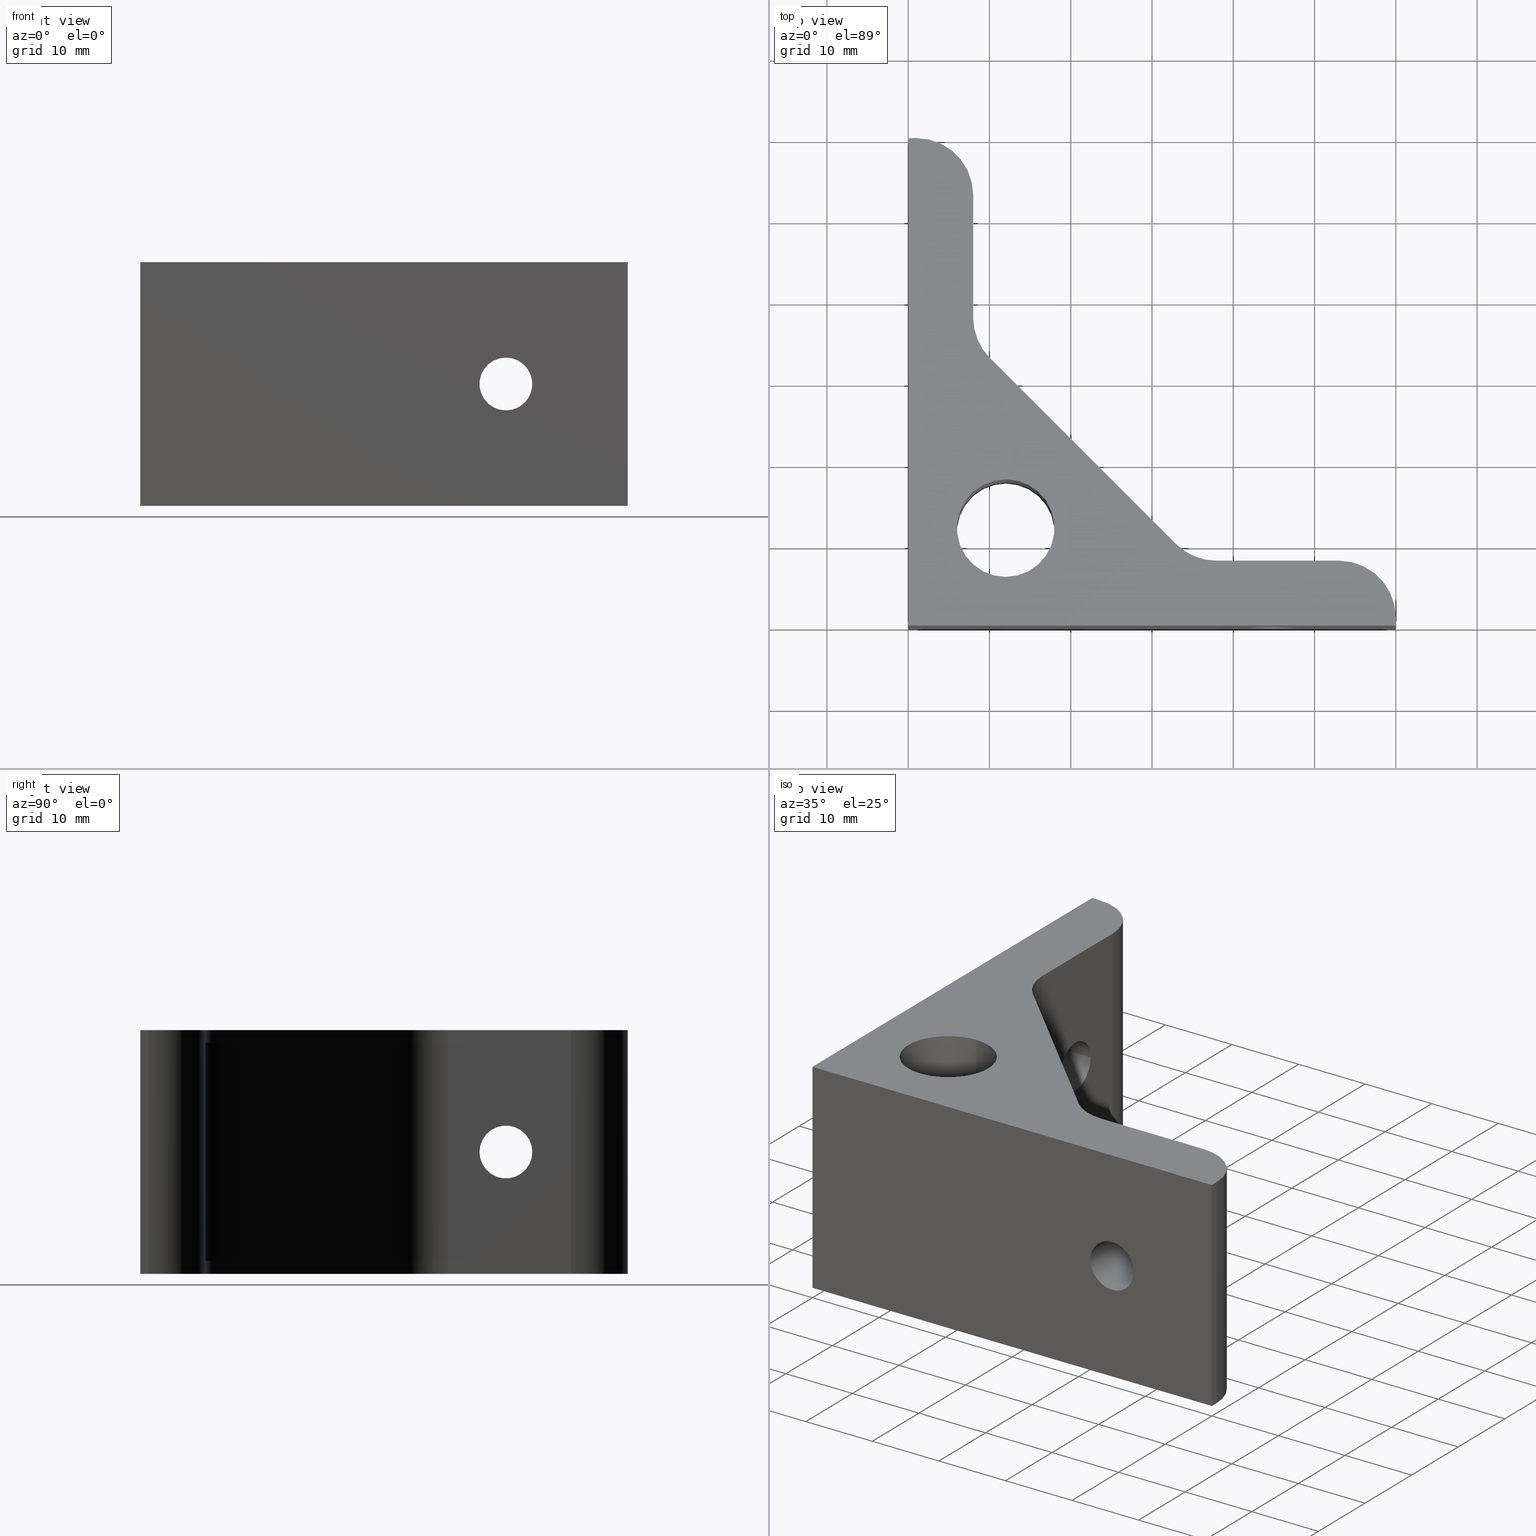
[diagram: canonical four-view strip — front | top / right | iso, engineering-drawing reading convention]
A machine part, canonical four-view strip (front | top / right | iso — engineering-drawing reading convention). The complete STEP part file that produces these views, byte-faithful:
ISO-10303-21;
HEADER;
FILE_DESCRIPTION (( 'STEP AP203' ),
    '1' );
FILE_NAME ('A30-10.STEP',
    '2018-04-03T10:58:11',
    ( 'User2' ),
    ( '' ),
    'SwSTEP 2.0',
    'SolidWorks 2007',
    '' );
FILE_SCHEMA (( 'CONFIG_CONTROL_DESIGN' ));
ENDSEC;

DATA;
#1 = AXIS2_PLACEMENT_3D ( 'NONE', #371, #367, #362 ) ;
#2 = AXIS2_PLACEMENT_3D ( 'NONE', #9, #11, #12 ) ;
#3 = AXIS2_PLACEMENT_3D ( 'NONE', #370, #369, #368 ) ;
#4 = DIRECTION ( 'NONE',  ( 0.0000000000000000000, 1.000000000000000000, 0.0000000000000000000 ) ) ;
#5 = CARTESIAN_POINT ( 'NONE',  ( 0.0000000000000000000, 30.00000000000000000, 0.0000000000000000000 ) ) ;
#6 = DIRECTION ( 'NONE',  ( -0.0000000000000000000, -0.0000000000000000000, -1.000000000000000000 ) ) ;
#7 = CARTESIAN_POINT ( 'NONE',  ( 0.0000000000000000000, 0.0000000000000000000, 15.00000000000000000 ) ) ;
#8 = DIRECTION ( 'NONE',  ( 0.0000000000000000000, 1.000000000000000000, 0.0000000000000000000 ) ) ;
#9 = CARTESIAN_POINT ( 'NONE',  ( -7.000000000000000000, 0.9999999999999926700, 3.469446951953614200E-015 ) ) ;
#10 = DIRECTION ( 'NONE',  ( 0.0000000000000000000, 0.0000000000000000000, 1.000000000000000000 ) ) ;
#11 = DIRECTION ( 'NONE',  ( -0.0000000000000000000, 2.478176394252582100E-016, 1.000000000000000000 ) ) ;
#12 = DIRECTION ( 'NONE',  ( -1.734723475976806900E-015, 1.000000000000000000, -2.478176394252581600E-016 ) ) ;
#13 = CARTESIAN_POINT ( 'NONE',  ( -7.000000000000000000, 8.000000000000000000, 15.00000000000000000 ) ) ;
#14 = ORIENTED_EDGE ( 'NONE', *, *, #290, .T. ) ;
#15 = ORIENTED_EDGE ( 'NONE', *, *, #383, .T. ) ;
#16 = ORIENTED_EDGE ( 'NONE', *, *, #382, .F. ) ;
#17 = ORIENTED_EDGE ( 'NONE', *, *, #381, .T. ) ;
#18 = ORIENTED_EDGE ( 'NONE', *, *, #386, .T. ) ;
#19 = ORIENTED_EDGE ( 'NONE', *, *, #396, .T. ) ;
#20 = ORIENTED_EDGE ( 'NONE', *, *, #292, .T. ) ;
#21 = ORIENTED_EDGE ( 'NONE', *, *, #395, .T. ) ;
#22 = ORIENTED_EDGE ( 'NONE', *, *, #294, .F. ) ;
#23 = ORIENTED_EDGE ( 'NONE', *, *, #394, .F. ) ;
#24 = ORIENTED_EDGE ( 'NONE', *, *, #386, .F. ) ;
#25 = ORIENTED_EDGE ( 'NONE', *, *, #389, .F. ) ;
#26 = ORIENTED_EDGE ( 'NONE', *, *, #392, .F. ) ;
#27 = ORIENTED_EDGE ( 'NONE', *, *, #293, .F. ) ;
#28 = ORIENTED_EDGE ( 'NONE', *, *, #396, .F. ) ;
#29 = ORIENTED_EDGE ( 'NONE', *, *, #393, .F. ) ;
#30 = ORIENTED_EDGE ( 'NONE', *, *, #378, .F. ) ;
#31 = ORIENTED_EDGE ( 'NONE', *, *, #388, .F. ) ;
#32 = ORIENTED_EDGE ( 'NONE', *, *, #383, .F. ) ;
#33 = ORIENTED_EDGE ( 'NONE', *, *, #395, .F. ) ;
#34 = ORIENTED_EDGE ( 'NONE', *, *, #290, .F. ) ;
#35 = CLOSED_SHELL ( 'NONE', ( #178, #179, #180, #181, #182, #183, #184, #185, #186, #187, #188, #189, #190, #191, #192, #310, #311, #313, #314 ) ) ;
#36 = ORIENTED_EDGE ( 'NONE', *, *, #394, .T. ) ;
#37 = ORIENTED_EDGE ( 'NONE', *, *, #391, .F. ) ;
#38 = ORIENTED_EDGE ( 'NONE', *, *, #409, .F. ) ;
#39 = ORIENTED_EDGE ( 'NONE', *, *, #410, .F. ) ;
#40 = ORIENTED_EDGE ( 'NONE', *, *, #413, .F. ) ;
#41 = ORIENTED_EDGE ( 'NONE', *, *, #374, .F. ) ;
#42 = ORIENTED_EDGE ( 'NONE', *, *, #298, .T. ) ;
#43 = ORIENTED_EDGE ( 'NONE', *, *, #380, .F. ) ;
#44 = ORIENTED_EDGE ( 'NONE', *, *, #393, .T. ) ;
#45 = ORIENTED_EDGE ( 'NONE', *, *, #384, .F. ) ;
#46 = ORIENTED_EDGE ( 'NONE', *, *, #385, .F. ) ;
#47 = ORIENTED_EDGE ( 'NONE', *, *, #289, .F. ) ;
#48 = ORIENTED_EDGE ( 'NONE', *, *, #377, .F. ) ;
#49 = ORIENTED_EDGE ( 'NONE', *, *, #392, .T. ) ;
#50 = ORIENTED_EDGE ( 'NONE', *, *, #390, .T. ) ;
#51 = ORIENTED_EDGE ( 'NONE', *, *, #408, .T. ) ;
#52 = ORIENTED_EDGE ( 'NONE', *, *, #391, .T. ) ;
#53 = ORIENTED_EDGE ( 'NONE', *, *, #404, .T. ) ;
#54 = ORIENTED_EDGE ( 'NONE', *, *, #375, .T. ) ;
#55 = ORIENTED_EDGE ( 'NONE', *, *, #373, .T. ) ;
#56 = ORIENTED_EDGE ( 'NONE', *, *, #412, .T. ) ;
#57 = ORIENTED_EDGE ( 'NONE', *, *, #407, .T. ) ;
#58 = ORIENTED_EDGE ( 'NONE', *, *, #390, .F. ) ;
#59 = ORIENTED_EDGE ( 'NONE', *, *, #389, .T. ) ;
#60 = ORIENTED_EDGE ( 'NONE', *, *, #387, .T. ) ;
#61 = ORIENTED_EDGE ( 'NONE', *, *, #382, .T. ) ;
#62 = ORIENTED_EDGE ( 'NONE', *, *, #388, .T. ) ;
#63 = ORIENTED_EDGE ( 'NONE', *, *, #379, .T. ) ;
#64 = ORIENTED_EDGE ( 'NONE', *, *, #295, .T. ) ;
#65 = ORIENTED_EDGE ( 'NONE', *, *, #376, .T. ) ;
#66 = ORIENTED_EDGE ( 'NONE', *, *, #387, .F. ) ;
#67 = ORIENTED_EDGE ( 'NONE', *, *, #285, .T. ) ;
#68 = ORIENTED_EDGE ( 'NONE', *, *, #376, .F. ) ;
#69 = ORIENTED_EDGE ( 'NONE', *, *, #286, .F. ) ;
#70 = ORIENTED_EDGE ( 'NONE', *, *, #375, .F. ) ;
#71 = ORIENTED_EDGE ( 'NONE', *, *, #374, .T. ) ;
#72 = ORIENTED_EDGE ( 'NONE', *, *, #377, .T. ) ;
#73 = ORIENTED_EDGE ( 'NONE', *, *, #414, .F. ) ;
#74 = ORIENTED_EDGE ( 'NONE', *, *, #297, .F. ) ;
#75 = AXIS2_PLACEMENT_3D ( 'NONE', #119, #120, #121 ) ;
#76 = AXIS2_PLACEMENT_3D ( 'NONE', #124, #125, #126 ) ;
#77 = AXIS2_PLACEMENT_3D ( 'NONE', #135, #136, #137 ) ;
#78 = AXIS2_PLACEMENT_3D ( 'NONE', #140, #141, #142 ) ;
#79 = AXIS2_PLACEMENT_3D ( 'NONE', #499, #500, #501 ) ;
#80 = CC_DESIGN_PERSON_AND_ORGANIZATION_ASSIGNMENT ( #234, #505, ( #193 ) ) ;
#81 = PRODUCT_DEFINITION ( 'UNKNOWN', '', #86, #316 ) ;
#82 = APPROVAL ( #508, 'UNSPECIFIED' ) ;
#83 = CC_DESIGN_APPROVAL ( #82, ( #81 ) ) ;
#84 = CC_DESIGN_PERSON_AND_ORGANIZATION_ASSIGNMENT ( #242, #510, ( #81 ) ) ;
#85 = CC_DESIGN_DATE_AND_TIME_ASSIGNMENT ( #246, #511, ( #81 ) ) ;
#86 = PRODUCT_DEFINITION_FORMATION_WITH_SPECIFIED_SOURCE ( 'ANY', '', #193, .NOT_KNOWN. ) ;
#87 = APPROVAL ( #512, 'UNSPECIFIED' ) ;
#88 = CC_DESIGN_APPROVAL ( #87, ( #86 ) ) ;
#89 = CC_DESIGN_PERSON_AND_ORGANIZATION_ASSIGNMENT ( #254, #514, ( #86 ) ) ;
#90 = CC_DESIGN_PERSON_AND_ORGANIZATION_ASSIGNMENT ( #255, #515, ( #86 ) ) ;
#91 = CC_DESIGN_PERSON_AND_ORGANIZATION_ASSIGNMENT ( #257, #517, ( #256 ) ) ;
#92 = CC_DESIGN_DATE_AND_TIME_ASSIGNMENT ( #261, #518, ( #256 ) ) ;
#93 = APPROVAL ( #519, 'UNSPECIFIED' ) ;
#94 = CC_DESIGN_APPROVAL ( #93, ( #256 ) ) ;
#95 = CC_DESIGN_SECURITY_CLASSIFICATION ( #256, ( #86 ) ) ;
#96 = PRODUCT_RELATED_PRODUCT_CATEGORY ( 'detail', '', ( #193 ) ) ;
#97 = CARTESIAN_POINT ( 'NONE',  ( -14.55025253150000200, 8.000000000000000000, 30.00000000000000000 ) ) ;
#98 = DIRECTION ( 'NONE',  ( -1.000000000000000000, -0.0000000000000000000, -0.0000000000000000000 ) ) ;
#99 = CARTESIAN_POINT ( 'NONE',  ( -22.10050506300000400, 15.00000000000000000, 30.00000000000000000 ) ) ;
#100 = DIRECTION ( 'NONE',  ( 0.0000000000000000000, -0.0000000000000000000, 1.000000000000000000 ) ) ;
#101 = DIRECTION ( 'NONE',  ( 1.000000000000000000, 0.0000000000000000000, 0.0000000000000000000 ) ) ;
#102 = CARTESIAN_POINT ( 'NONE',  ( -22.10050506300000400, 15.00000000000000000, 0.0000000000000000000 ) ) ;
#103 = DIRECTION ( 'NONE',  ( -0.0000000000000000000, 0.0000000000000000000, -1.000000000000000000 ) ) ;
#104 = DIRECTION ( 'NONE',  ( 1.000000000000000000, 0.0000000000000000000, 0.0000000000000000000 ) ) ;
#105 = CARTESIAN_POINT ( 'NONE',  ( -22.10050506300000400, 8.000000000000000000, 15.00000000000000000 ) ) ;
#106 = DIRECTION ( 'NONE',  ( -0.0000000000000000000, -0.0000000000000000000, -1.000000000000000000 ) ) ;
#107 = CARTESIAN_POINT ( 'NONE',  ( -30.00000000000000000, 0.0000000000000000000, 0.0000000000000000000 ) ) ;
#108 = DIRECTION ( 'NONE',  ( -1.000000000000000000, 0.0000000000000000000, 0.0000000000000000000 ) ) ;
#109 = CARTESIAN_POINT ( 'NONE',  ( -14.55025253150000200, 8.000000000000000000, 0.0000000000000000000 ) ) ;
#110 = DIRECTION ( 'NONE',  ( 1.000000000000000000, 0.0000000000000000000, 0.0000000000000000000 ) ) ;
#111 = CARTESIAN_POINT ( 'NONE',  ( -15.00000000000000000, 0.0000000000000000000, 15.00000000000000000 ) ) ;
#112 = DIRECTION ( 'NONE',  ( 0.0000000000000000000, -1.000000000000000000, -0.0000000000000000000 ) ) ;
#113 = DIRECTION ( 'NONE',  ( 0.0000000000000000000, 0.0000000000000000000, 1.000000000000000000 ) ) ;
#114 = CARTESIAN_POINT ( 'NONE',  ( -15.00000000000000000, 8.000000000000000000, 15.00000000000000000 ) ) ;
#115 = DIRECTION ( 'NONE',  ( -0.0000000000000000000, 1.000000000000000000, 0.0000000000000000000 ) ) ;
#116 = DIRECTION ( 'NONE',  ( 0.0000000000000000000, 0.0000000000000000000, 1.000000000000000000 ) ) ;
#117 = CARTESIAN_POINT ( 'NONE',  ( -60.00000000000000000, 60.00000000000000000, 15.00000000000000000 ) ) ;
#118 = DIRECTION ( 'NONE',  ( -0.0000000000000000000, -0.0000000000000000000, 1.000000000000000000 ) ) ;
#119 = CARTESIAN_POINT ( 'NONE',  ( -60.00000000000000000, 45.00000000000000000, 15.00000000000000000 ) ) ;
#120 = DIRECTION ( 'NONE',  ( -1.000000000000000000, 1.067522139062651900E-015, -0.0000000000000000000 ) ) ;
#121 = DIRECTION ( 'NONE',  ( 2.135044278125299400E-015, 1.000000000000000000, 0.0000000000000000000 ) ) ;
#122 = CARTESIAN_POINT ( 'NONE',  ( -59.50000000000000000, 60.00000000000000000, 30.00000000000000000 ) ) ;
#123 = DIRECTION ( 'NONE',  ( -1.000000000000000000, -0.0000000000000000000, -0.0000000000000000000 ) ) ;
#124 = CARTESIAN_POINT ( 'NONE',  ( -52.00000000000000700, 44.99999999999999300, 15.00000000000000000 ) ) ;
#125 = DIRECTION ( 'NONE',  ( 1.000000000000000000, -1.067522139062651900E-015, 0.0000000000000000000 ) ) ;
#126 = DIRECTION ( 'NONE',  ( 2.135044278125303700E-015, 1.000000000000000000, 0.0000000000000000000 ) ) ;
#127 = CARTESIAN_POINT ( 'NONE',  ( -49.94974746824267000, 32.94974746863101700, 14.99999999999999800 ) ) ;
#128 = DIRECTION ( 'NONE',  ( -0.0000000000000000000, -0.0000000000000000000, -1.000000000000000000 ) ) ;
#129 = CARTESIAN_POINT ( 'NONE',  ( -27.05025251999999700, 10.05025254000000200, 30.00000000000000000 ) ) ;
#130 = DIRECTION ( 'NONE',  ( -0.7071067811865474600, 0.7071067811865475700, 0.0000000000000000000 ) ) ;
#131 = CARTESIAN_POINT ( 'NONE',  ( -27.05025253124269100, 10.05025253163101500, 14.99999999999999800 ) ) ;
#132 = DIRECTION ( 'NONE',  ( 0.0000000000000000000, 0.0000000000000000000, 1.000000000000000000 ) ) ;
#133 = CARTESIAN_POINT ( 'NONE',  ( -49.94974746799999800, 32.94974746799999100, 0.0000000000000000000 ) ) ;
#134 = DIRECTION ( 'NONE',  ( -0.7071067811865475700, 0.7071067811865474600, -0.0000000000000000000 ) ) ;
#135 = CARTESIAN_POINT ( 'NONE',  ( -45.00000000000000000, 37.89949493700000700, 0.0000000000000000000 ) ) ;
#136 = DIRECTION ( 'NONE',  ( -0.0000000000000000000, 0.0000000000000000000, -1.000000000000000000 ) ) ;
#137 = DIRECTION ( 'NONE',  ( 1.000000000000000000, 0.0000000000000000000, 0.0000000000000000000 ) ) ;
#138 = CARTESIAN_POINT ( 'NONE',  ( -52.00000000000000700, 37.89949493700000700, 15.00000000000000000 ) ) ;
#139 = DIRECTION ( 'NONE',  ( 0.0000000000000000000, 0.0000000000000000000, 1.000000000000000000 ) ) ;
#140 = CARTESIAN_POINT ( 'NONE',  ( -45.00000000000000000, 37.89949493700000700, 30.00000000000000000 ) ) ;
#141 = DIRECTION ( 'NONE',  ( -0.0000000000000000000, 0.0000000000000000000, -1.000000000000000000 ) ) ;
#142 = DIRECTION ( 'NONE',  ( 1.000000000000000000, 0.0000000000000000000, 0.0000000000000000000 ) ) ;
#143 = CARTESIAN_POINT ( 'NONE',  ( -52.00000001999999500, 30.00000000000000000, 0.0000000000000000000 ) ) ;
#144 = DIRECTION ( 'NONE',  ( 0.0000000000000000000, 1.000000000000000000, 0.0000000000000000000 ) ) ;
#145 = CARTESIAN_POINT ( 'NONE',  ( -52.00000000000000700, 52.99999999712855500, 15.00000000000000000 ) ) ;
#146 = DIRECTION ( 'NONE',  ( -0.0000000000000000000, -0.0000000000000000000, 1.000000000000000000 ) ) ;
#147 = CARTESIAN_POINT ( 'NONE',  ( -27.05025253137134600, 10.05025253156551000, 0.0000000000000000000 ) ) ;
#148 = CARTESIAN_POINT ( 'NONE',  ( -58.99999999928213900, 60.00000000000000000, -8.673617379884039400E-016 ) ) ;
#149 = CARTESIAN_POINT ( 'NONE',  ( -52.00000001000000100, 37.89949493700000700, 30.00000000000000000 ) ) ;
#150 = CARTESIAN_POINT ( 'NONE',  ( -7.000000000000000000, 8.000000000000000000, 30.00000000000000000 ) ) ;
#151 = CARTESIAN_POINT ( 'NONE',  ( -48.00000000000000000, 17.99999999999998900, -1.734723475976807900E-015 ) ) ;
#152 = CARTESIAN_POINT ( 'NONE',  ( -15.00000000000000000, 8.000000000000000000, 11.75000000000000000 ) ) ;
#153 = CARTESIAN_POINT ( 'NONE',  ( -52.00000001000000100, 37.89949493700000700, 0.0000000000000000000 ) ) ;
#154 = CARTESIAN_POINT ( 'NONE',  ( -48.00000000000000000, 5.999999999999992900, 1.734723475976807500E-015 ) ) ;
#155 = CARTESIAN_POINT ( 'NONE',  ( -52.00000000000000000, 48.24999999999998600, 15.00000000000000000 ) ) ;
#156 = CARTESIAN_POINT ( 'NONE',  ( -22.10050506300000400, 8.000000000000000000, 30.00000000000000000 ) ) ;
#157 = CARTESIAN_POINT ( 'NONE',  ( -59.99999999999999300, 48.25000000000000000, 15.00000000000000000 ) ) ;
#158 = CARTESIAN_POINT ( 'NONE',  ( -52.00000001000000100, 52.99999999856427700, 30.00000000000000000 ) ) ;
#159 = CARTESIAN_POINT ( 'NONE',  ( -15.00000000000000000, 0.0000000000000000000, 11.75000000000000000 ) ) ;
#160 = CARTESIAN_POINT ( 'NONE',  ( -52.00000000000000700, 41.74999999999999300, 15.00000000000000000 ) ) ;
#161 = CARTESIAN_POINT ( 'NONE',  ( 0.0000000000000000000, 0.9999999985642721300, 1.734723475976807100E-015 ) ) ;
#162 = CARTESIAN_POINT ( 'NONE',  ( -22.10050506300000400, 8.000000000000000000, 0.0000000000000000000 ) ) ;
#163 = CARTESIAN_POINT ( 'NONE',  ( -49.94974746337133100, 32.94974747356550900, 30.00000000000000000 ) ) ;
#164 = CARTESIAN_POINT ( 'NONE',  ( -15.00000000000000000, 0.0000000000000000000, 18.25000000000000000 ) ) ;
#165 = CARTESIAN_POINT ( 'NONE',  ( 0.0000000000000000000, 0.9999999985642759000, 30.00000000000000000 ) ) ;
#166 = CARTESIAN_POINT ( 'NONE',  ( 0.0000000000000000000, 0.0000000000000000000, 30.00000000000000000 ) ) ;
#167 = CARTESIAN_POINT ( 'NONE',  ( -27.05025252637134500, 10.05025253656551100, 30.00000000000000000 ) ) ;
#168 = CARTESIAN_POINT ( 'NONE',  ( -49.94974746837132800, 32.94974746856550500, 0.0000000000000000000 ) ) ;
#169 = CARTESIAN_POINT ( 'NONE',  ( 0.0000000000000000000, 0.0000000000000000000, 0.0000000000000000000 ) ) ;
#170 = CARTESIAN_POINT ( 'NONE',  ( -60.00000000000000700, 41.74999999999999300, 15.00000000000000000 ) ) ;
#171 = CARTESIAN_POINT ( 'NONE',  ( -48.00000000000000000, 6.000000000000001800, 30.00000000000000400 ) ) ;
#172 = CARTESIAN_POINT ( 'NONE',  ( -60.00000000000000000, 0.0000000000000000000, 30.00000000000000000 ) ) ;
#173 = CARTESIAN_POINT ( 'NONE',  ( -52.00000001000000100, 52.99999999856427000, 0.0000000000000000000 ) ) ;
#174 = CARTESIAN_POINT ( 'NONE',  ( -15.00000000000000000, 8.000000000000000000, 18.25000000000000000 ) ) ;
#175 = CARTESIAN_POINT ( 'NONE',  ( -7.000000000000000000, 8.000000000000000000, 8.673617379884035500E-016 ) ) ;
#176 = CARTESIAN_POINT ( 'NONE',  ( -60.00000000000000000, 60.00000000000000000, 30.00000000000000000 ) ) ;
#177 = CARTESIAN_POINT ( 'NONE',  ( -58.99999999928213900, 60.00000000000000000, 30.00000000000000000 ) ) ;
#178 = ADVANCED_FACE ( 'NONE', ( #611 ), #612, .F. ) ;
#179 = ADVANCED_FACE ( 'NONE', ( #613 ), #614, .F. ) ;
#180 = ADVANCED_FACE ( 'NONE', ( #615 ), #616, .F. ) ;
#181 = ADVANCED_FACE ( 'NONE', ( #617 ), #460, .F. ) ;
#182 = ADVANCED_FACE ( 'NONE', ( #618 ), #619, .F. ) ;
#183 = ADVANCED_FACE ( 'NONE', ( #620 ), #423, .F. ) ;
#184 = ADVANCED_FACE ( 'NONE', ( #623 ), #624, .F. ) ;
#185 = ADVANCED_FACE ( 'NONE', ( #626, #628 ), #462, .F. ) ;
#186 = ADVANCED_FACE ( 'NONE', ( #591 ), #629, .T. ) ;
#187 = ADVANCED_FACE ( 'NONE', ( #590 ), #627, .F. ) ;
#188 = ADVANCED_FACE ( 'NONE', ( #625, #622 ), #540, .F. ) ;
#189 = ADVANCED_FACE ( 'NONE', ( #621 ), #536, .F. ) ;
#190 = ADVANCED_FACE ( 'NONE', ( #630 ), #632, .T. ) ;
#191 = ADVANCED_FACE ( 'NONE', ( #631, #636 ), #529, .T. ) ;
#192 = ADVANCED_FACE ( 'NONE', ( #637 ), #638, .F. ) ;
#193 = PRODUCT ( 'A30-10', 'A30-10', '', ( #504 ) ) ;
#194 = PERSON ( 'UNSPECIFIED', 'UNSPECIFIED', 'UNSPECIFIED', ('UNSPECIFIED'), ('UNSPECIFIED'), ('UNSPECIFIED') ) ;
#195 = CIRCLE ( 'NONE', #550, 7.000000000000000000 ) ;
#196 = VECTOR ( 'NONE', #299, 1000.000000000000000 ) ;
#197 = LINE ( 'NONE', #97, #198 ) ;
#198 = VECTOR ( 'NONE', #98, 1000.000000000000000 ) ;
#199 = CIRCLE ( 'NONE', #549, 7.000000000000004400 ) ;
#200 = LINE ( 'NONE', #105, #202 ) ;
#201 = CIRCLE ( 'NONE', #548, 7.000000000000004400 ) ;
#202 = VECTOR ( 'NONE', #106, 1000.000000000000000 ) ;
#203 = LINE ( 'NONE', #107, #204 ) ;
#204 = VECTOR ( 'NONE', #108, 1000.000000000000000 ) ;
#205 = LINE ( 'NONE', #109, #206 ) ;
#206 = VECTOR ( 'NONE', #110, 1000.000000000000000 ) ;
#207 = CIRCLE ( 'NONE', #486, 3.249999999999999600 ) ;
#208 = LINE ( 'NONE', #117, #210 ) ;
#209 = CIRCLE ( 'NONE', #485, 3.249999999999999600 ) ;
#210 = VECTOR ( 'NONE', #118, 1000.000000000000000 ) ;
#211 = LINE ( 'NONE', #122, #213 ) ;
#212 = CIRCLE ( 'NONE', #75, 3.250000000000002700 ) ;
#213 = VECTOR ( 'NONE', #123, 1000.000000000000000 ) ;
#214 = LINE ( 'NONE', #127, #216 ) ;
#215 = CIRCLE ( 'NONE', #76, 3.249999999999996000 ) ;
#216 = VECTOR ( 'NONE', #128, 1000.000000000000000 ) ;
#217 = LINE ( 'NONE', #129, #218 ) ;
#218 = VECTOR ( 'NONE', #130, 1000.000000000000000 ) ;
#219 = LINE ( 'NONE', #131, #220 ) ;
#220 = VECTOR ( 'NONE', #132, 1000.000000000000000 ) ;
#221 = LINE ( 'NONE', #133, #222 ) ;
#222 = VECTOR ( 'NONE', #134, 1000.000000000000000 ) ;
#223 = LINE ( 'NONE', #138, #225 ) ;
#224 = CIRCLE ( 'NONE', #77, 6.999999999999999100 ) ;
#225 = VECTOR ( 'NONE', #139, 1000.000000000000000 ) ;
#226 = LINE ( 'NONE', #143, #228 ) ;
#227 = CIRCLE ( 'NONE', #78, 6.999999999999999100 ) ;
#228 = VECTOR ( 'NONE', #144, 1000.000000000000000 ) ;
#229 = LINE ( 'NONE', #145, #230 ) ;
#230 = VECTOR ( 'NONE', #146, 1000.000000000000000 ) ;
#231 =( GEOMETRIC_REPRESENTATION_CONTEXT ( 3 ) GLOBAL_UNCERTAINTY_ASSIGNED_CONTEXT ( ( #372 ) ) GLOBAL_UNIT_ASSIGNED_CONTEXT ( ( #496, #497, #498 ) ) REPRESENTATION_CONTEXT ( 'NONE', 'WORKASPACE' ) );
#232 = SHAPE_DEFINITION_REPRESENTATION ( #317, #315 ) ;
#233 = ORGANIZATION ( 'UNSPECIFIED', 'UNSPECIFIED', '' ) ;
#234 = PERSON_AND_ORGANIZATION ( #194, #233 ) ;
#235 = PERSON_AND_ORGANIZATION ( #194, #233 ) ;
#236 = APPROVAL_PERSON_ORGANIZATION ( #235, #82, #509 ) ;
#237 = COORDINATED_UNIVERSAL_TIME_OFFSET ( 3, 0, .BEHIND. ) ;
#238 = LOCAL_TIME ( 7, 58, 11.00000000000000000, #237 ) ;
#239 = CALENDAR_DATE ( 2018, 3, 4 ) ;
#240 = DATE_AND_TIME ( #239, #238 ) ;
#241 = APPROVAL_DATE_TIME ( #240, #82 ) ;
#242 = PERSON_AND_ORGANIZATION ( #194, #233 ) ;
#243 = COORDINATED_UNIVERSAL_TIME_OFFSET ( 3, 0, .BEHIND. ) ;
#244 = LOCAL_TIME ( 7, 58, 11.00000000000000000, #243 ) ;
#245 = CALENDAR_DATE ( 2018, 3, 4 ) ;
#246 = DATE_AND_TIME ( #245, #244 ) ;
#247 = PERSON_AND_ORGANIZATION ( #194, #233 ) ;
#248 = APPROVAL_PERSON_ORGANIZATION ( #247, #87, #513 ) ;
#249 = COORDINATED_UNIVERSAL_TIME_OFFSET ( 3, 0, .BEHIND. ) ;
#250 = LOCAL_TIME ( 7, 58, 11.00000000000000000, #249 ) ;
#251 = CALENDAR_DATE ( 2018, 3, 4 ) ;
#252 = DATE_AND_TIME ( #251, #250 ) ;
#253 = APPROVAL_DATE_TIME ( #252, #87 ) ;
#254 = PERSON_AND_ORGANIZATION ( #194, #233 ) ;
#255 = PERSON_AND_ORGANIZATION ( #194, #233 ) ;
#256 = SECURITY_CLASSIFICATION ( '', '', #516 ) ;
#257 = PERSON_AND_ORGANIZATION ( #194, #233 ) ;
#258 = COORDINATED_UNIVERSAL_TIME_OFFSET ( 3, 0, .BEHIND. ) ;
#259 = LOCAL_TIME ( 7, 58, 11.00000000000000000, #258 ) ;
#260 = CALENDAR_DATE ( 2018, 3, 4 ) ;
#261 = DATE_AND_TIME ( #260, #259 ) ;
#262 = PERSON_AND_ORGANIZATION ( #194, #233 ) ;
#263 = APPROVAL_PERSON_ORGANIZATION ( #262, #93, #520 ) ;
#264 = COORDINATED_UNIVERSAL_TIME_OFFSET ( 3, 0, .BEHIND. ) ;
#265 = LOCAL_TIME ( 7, 58, 11.00000000000000000, #264 ) ;
#266 = CALENDAR_DATE ( 2018, 3, 4 ) ;
#267 = DATE_AND_TIME ( #266, #265 ) ;
#268 = APPROVAL_DATE_TIME ( #267, #93 ) ;
#269 = DIRECTION ( 'NONE',  ( 2.135044278125299400E-015, 1.000000000000000000, 0.0000000000000000000 ) ) ;
#270 = DIRECTION ( 'NONE',  ( -1.000000000000000000, 1.067522139062651900E-015, -0.0000000000000000000 ) ) ;
#271 = CARTESIAN_POINT ( 'NONE',  ( -60.00000000000000000, 45.00000000000000000, 15.00000000000000000 ) ) ;
#272 = DIRECTION ( 'NONE',  ( 0.0000000000000000000, 0.0000000000000000000, 1.000000000000000000 ) ) ;
#273 = DIRECTION ( 'NONE',  ( 0.0000000000000000000, -1.000000000000000000, -0.0000000000000000000 ) ) ;
#274 = CARTESIAN_POINT ( 'NONE',  ( -15.00000000000000000, 0.0000000000000000000, 15.00000000000000000 ) ) ;
#275 = DIRECTION ( 'NONE',  ( 0.0000000000000000000, 1.000000000000000000, -2.891205793294681300E-016 ) ) ;
#276 = DIRECTION ( 'NONE',  ( 0.0000000000000000000, -2.891205793294680300E-016, -1.000000000000000000 ) ) ;
#277 = CARTESIAN_POINT ( 'NONE',  ( -48.00000000000000000, 11.99999999999999100, 0.0000000000000000000 ) ) ;
#278 = DIRECTION ( 'NONE',  ( 2.135044278125303700E-015, 1.000000000000000000, 0.0000000000000000000 ) ) ;
#279 = DIRECTION ( 'NONE',  ( 1.000000000000000000, -1.067522139062651900E-015, 0.0000000000000000000 ) ) ;
#280 = CARTESIAN_POINT ( 'NONE',  ( -52.00000000000000700, 44.99999999999999300, 15.00000000000000000 ) ) ;
#281 = DIRECTION ( 'NONE',  ( 1.000000000000000000, -1.067522139062651900E-015, 0.0000000000000000000 ) ) ;
#282 = CARTESIAN_POINT ( 'NONE',  ( -60.00000000000000700, 41.74999999999999300, 15.00000000000000000 ) ) ;
#283 = DIRECTION ( 'NONE',  ( 0.0000000000000000000, -2.891205793294680300E-016, -1.000000000000000000 ) ) ;
#284 = CARTESIAN_POINT ( 'NONE',  ( -48.00000000000000000, 6.000000000000001800, 30.00000000000000400 ) ) ;
#285 = EDGE_CURVE ( 'NONE', #469, #419, #642, .T. ) ;
#286 = EDGE_CURVE ( 'NONE', #453, #422, #640, .T. ) ;
#287 = EDGE_CURVE ( 'NONE', #452, #431, #644, .T. ) ;
#288 = EDGE_CURVE ( 'NONE', #431, #426, #645, .T. ) ;
#289 = EDGE_CURVE ( 'NONE', #422, #419, #695, .T. ) ;
#290 = EDGE_CURVE ( 'NONE', #435, #430, #694, .T. ) ;
#291 = EDGE_CURVE ( 'NONE', #428, #452, #692, .T. ) ;
#292 = EDGE_CURVE ( 'NONE', #435, #463, #693, .T. ) ;
#293 = EDGE_CURVE ( 'NONE', #420, #463, #689, .T. ) ;
#294 = EDGE_CURVE ( 'NONE', #430, #420, #690, .T. ) ;
#295 = EDGE_CURVE ( 'NONE', #453, #469, #648, .T. ) ;
#296 = EDGE_CURVE ( 'NONE', #428, #426, #698, .T. ) ;
#297 = EDGE_CURVE ( 'NONE', #468, #416, #653, .T. ) ;
#298 = EDGE_CURVE ( 'NONE', #471, #416, #655, .T. ) ;
#299 = DIRECTION ( 'NONE',  ( 1.000000000000000000, -0.0000000000000000000, -0.0000000000000000000 ) ) ;
#300 = CARTESIAN_POINT ( 'NONE',  ( -7.000000000000000000, 1.000000000000000000, 30.00000000000000000 ) ) ;
#301 = CARTESIAN_POINT ( 'NONE',  ( -30.00000000000000000, 0.0000000000000000000, 30.00000000000000000 ) ) ;
#302 = DIRECTION ( 'NONE',  ( 0.0000000000000000000, 1.000000000000000000, -4.956352788505163300E-016 ) ) ;
#303 = DIRECTION ( 'NONE',  ( -0.0000000000000000000, 2.478176394252582100E-016, 1.000000000000000000 ) ) ;
#304 = AXIS2_PLACEMENT_3D ( 'NONE', #341, #342, #343 ) ;
#305 = AXIS2_PLACEMENT_3D ( 'NONE', #345, #346, #347 ) ;
#306 = AXIS2_PLACEMENT_3D ( 'NONE', #349, #350, #351 ) ;
#307 = AXIS2_PLACEMENT_3D ( 'NONE', #324, #326, #327 ) ;
#308 = AXIS2_PLACEMENT_3D ( 'NONE', #320, #321, #322 ) ;
#309 = AXIS2_PLACEMENT_3D ( 'NONE', #352, #353, #354 ) ;
#310 = ADVANCED_FACE ( 'NONE', ( #697, #696 ), #340, .F. ) ;
#311 = ADVANCED_FACE ( 'NONE', ( #656, #657 ), #344, .F. ) ;
#312 = MANIFOLD_SOLID_BREP ( 'NONE', #35 ) ;
#313 = ADVANCED_FACE ( 'NONE', ( #658, #659 ), #348, .F. ) ;
#314 = ADVANCED_FACE ( 'NONE', ( #660 ), #661, .F. ) ;
#315 = ADVANCED_BREP_SHAPE_REPRESENTATION ( 'A30-10', ( #312, #79 ), #231 ) ;
#316 = DESIGN_CONTEXT ( 'detailed design', #506, 'design' ) ;
#317 = PRODUCT_DEFINITION_SHAPE ( 'NONE', 'NONE',  #81 ) ;
#318 = DIRECTION ( 'NONE',  ( 0.0000000000000000000, 0.0000000000000000000, 1.000000000000000000 ) ) ;
#319 = CARTESIAN_POINT ( 'NONE',  ( -15.00000000000000000, 0.0000000000000000000, 11.75000000000000000 ) ) ;
#320 = CARTESIAN_POINT ( 'NONE',  ( -59.00000000000000700, 52.99999999999999300, 0.0000000000000000000 ) ) ;
#321 = DIRECTION ( 'NONE',  ( -0.0000000000000000000, 2.478176394252580600E-016, 1.000000000000000000 ) ) ;
#322 = DIRECTION ( 'NONE',  ( 0.0000000000000000000, 1.000000000000000000, -2.478176394252580600E-016 ) ) ;
#323 = DIRECTION ( 'NONE',  ( -0.0000000000000000000, 1.000000000000000000, 0.0000000000000000000 ) ) ;
#324 = CARTESIAN_POINT ( 'NONE',  ( -59.00000000000000700, 53.00000000000000000, 30.00000000000000000 ) ) ;
#325 = CARTESIAN_POINT ( 'NONE',  ( -15.00000000000000000, 8.000000000000000000, 15.00000000000000000 ) ) ;
#326 = DIRECTION ( 'NONE',  ( -0.0000000000000000000, 2.478176394252580600E-016, 1.000000000000000000 ) ) ;
#327 = DIRECTION ( 'NONE',  ( 0.0000000000000000000, 1.000000000000000000, 0.0000000000000000000 ) ) ;
#328 = DIRECTION ( 'NONE',  ( -0.0000000000000000000, 1.000000000000000000, 0.0000000000000000000 ) ) ;
#329 = CARTESIAN_POINT ( 'NONE',  ( -15.00000000000000000, 0.0000000000000000000, 18.25000000000000000 ) ) ;
#330 = DIRECTION ( 'NONE',  ( -0.0000000000000000000, 1.000000000000000000, 0.0000000000000000000 ) ) ;
#331 = CARTESIAN_POINT ( 'NONE',  ( -48.00000000000000000, 12.00000000000000000, 30.00000000000000000 ) ) ;
#332 = DIRECTION ( 'NONE',  ( 0.0000000000000000000, -2.891205793294680300E-016, -1.000000000000000000 ) ) ;
#333 = DIRECTION ( 'NONE',  ( 0.0000000000000000000, 1.000000000000000000, -5.782411586589358600E-016 ) ) ;
#334 = CARTESIAN_POINT ( 'NONE',  ( -59.99999999999999300, 48.25000000000000000, 15.00000000000000000 ) ) ;
#335 = DIRECTION ( 'NONE',  ( 1.000000000000000000, -1.067522139062651900E-015, 0.0000000000000000000 ) ) ;
#336 = CARTESIAN_POINT ( 'NONE',  ( -58.99999999856427700, 60.00000000000000000, 15.00000000000000000 ) ) ;
#337 = DIRECTION ( 'NONE',  ( 0.0000000000000000000, 0.0000000000000000000, -1.000000000000000000 ) ) ;
#338 = CARTESIAN_POINT ( 'NONE',  ( -59.50000000000000000, 60.00000000000000000, 0.0000000000000000000 ) ) ;
#339 = DIRECTION ( 'NONE',  ( 1.000000000000000000, 0.0000000000000000000, 0.0000000000000000000 ) ) ;
#340 = PLANE ( 'NONE',  #304 ) ;
#341 = CARTESIAN_POINT ( 'NONE',  ( -60.00000000000000000, 0.0000000000000000000, 0.0000000000000000000 ) ) ;
#342 = DIRECTION ( 'NONE',  ( 0.0000000000000000000, 0.0000000000000000000, 1.000000000000000000 ) ) ;
#343 = DIRECTION ( 'NONE',  ( 1.000000000000000000, 0.0000000000000000000, 0.0000000000000000000 ) ) ;
#344 = PLANE ( 'NONE',  #305 ) ;
#345 = CARTESIAN_POINT ( 'NONE',  ( 0.0000000000000000000, 0.0000000000000000000, 0.0000000000000000000 ) ) ;
#346 = DIRECTION ( 'NONE',  ( 0.0000000000000000000, 1.000000000000000000, -0.0000000000000000000 ) ) ;
#347 = DIRECTION ( 'NONE',  ( -1.000000000000000000, 0.0000000000000000000, 0.0000000000000000000 ) ) ;
#348 = PLANE ( 'NONE',  #306 ) ;
#349 = CARTESIAN_POINT ( 'NONE',  ( -22.10050506300000400, 8.000000000000000000, 0.0000000000000000000 ) ) ;
#350 = DIRECTION ( 'NONE',  ( 0.0000000000000000000, -1.000000000000000000, 0.0000000000000000000 ) ) ;
#351 = DIRECTION ( 'NONE',  ( 1.000000000000000000, 0.0000000000000000000, 0.0000000000000000000 ) ) ;
#352 = CARTESIAN_POINT ( 'NONE',  ( -15.00000000000000000, 0.0000000000000000000, 15.00000000000000000 ) ) ;
#353 = DIRECTION ( 'NONE',  ( -0.0000000000000000000, 1.000000000000000000, 0.0000000000000000000 ) ) ;
#354 = DIRECTION ( 'NONE',  ( 0.0000000000000000000, 0.0000000000000000000, 1.000000000000000000 ) ) ;
#355 = CARTESIAN_POINT ( 'NONE',  ( -52.00000001999999500, 30.00000000000000000, 30.00000000000000000 ) ) ;
#356 = DIRECTION ( 'NONE',  ( 0.0000000000000000000, 1.000000000000000000, 0.0000000000000000000 ) ) ;
#357 = CARTESIAN_POINT ( 'NONE',  ( 0.0000000000000000000, 30.00000000000000000, 30.00000000000000000 ) ) ;
#358 = DIRECTION ( 'NONE',  ( -0.0000000000000000000, -0.0000000000000000000, 1.000000000000000000 ) ) ;
#359 = CARTESIAN_POINT ( 'NONE',  ( 0.0000000000000000000, 0.9999999971285519200, 15.00000000000000000 ) ) ;
#360 = DIRECTION ( 'NONE',  ( -0.0000000000000000000, -1.000000000000000000, -0.0000000000000000000 ) ) ;
#361 = CARTESIAN_POINT ( 'NONE',  ( -60.00000000000000000, 30.00000000000000000, 0.0000000000000000000 ) ) ;
#362 = DIRECTION ( 'NONE',  ( 0.0000000000000000000, 1.000000000000000000, -5.782411586589358600E-016 ) ) ;
#363 = DIRECTION ( 'NONE',  ( -0.0000000000000000000, -1.000000000000000000, -0.0000000000000000000 ) ) ;
#364 = CARTESIAN_POINT ( 'NONE',  ( -60.00000000000000000, 30.00000000000000000, 30.00000000000000000 ) ) ;
#365 = DIRECTION ( 'NONE',  ( 0.0000000000000000000, 0.0000000000000000000, 1.000000000000000000 ) ) ;
#366 = CARTESIAN_POINT ( 'NONE',  ( -60.00000000000000000, 0.0000000000000000000, 15.00000000000000000 ) ) ;
#367 = DIRECTION ( 'NONE',  ( 0.0000000000000000000, -2.891205793294680300E-016, -1.000000000000000000 ) ) ;
#368 = DIRECTION ( 'NONE',  ( 0.0000000000000000000, 1.000000000000000000, -2.891205793294681300E-016 ) ) ;
#369 = DIRECTION ( 'NONE',  ( 0.0000000000000000000, -2.891205793294680300E-016, -1.000000000000000000 ) ) ;
#370 = CARTESIAN_POINT ( 'NONE',  ( -48.00000000000000000, 11.99999999999999100, 0.0000000000000000000 ) ) ;
#371 = CARTESIAN_POINT ( 'NONE',  ( -48.00000000000000000, 12.00000000000000000, 30.00000000000000000 ) ) ;
#372 = UNCERTAINTY_MEASURE_WITH_UNIT (LENGTH_MEASURE( 1.000000000000000100E-005 ), #496, 'distance_accuracy_value', 'NONE');
#373 = EDGE_CURVE ( 'NONE', #417, #429, #662, .T. ) ;
#374 = EDGE_CURVE ( 'NONE', #457, #416, #664, .T. ) ;
#375 = EDGE_CURVE ( 'NONE', #429, #468, #665, .T. ) ;
#376 = EDGE_CURVE ( 'NONE', #469, #453, #666, .T. ) ;
#377 = EDGE_CURVE ( 'NONE', #419, #422, #668, .T. ) ;
#378 = EDGE_CURVE ( 'NONE', #473, #454, #667, .T. ) ;
#379 = EDGE_CURVE ( 'NONE', #467, #454, #670, .T. ) ;
#380 = EDGE_CURVE ( 'NONE', #471, #473, #674, .T. ) ;
#381 = EDGE_CURVE ( 'NONE', #432, #438, #676, .T. ) ;
#382 = EDGE_CURVE ( 'NONE', #439, #438, #675, .T. ) ;
#383 = EDGE_CURVE ( 'NONE', #439, #451, #677, .T. ) ;
#384 = EDGE_CURVE ( 'NONE', #451, #432, #680, .T. ) ;
#385 = EDGE_CURVE ( 'NONE', #432, #465, #684, .T. ) ;
#386 = EDGE_CURVE ( 'NONE', #465, #418, #682, .T. ) ;
#387 = EDGE_CURVE ( 'NONE', #438, #418, #195, .T. ) ;
#388 = EDGE_CURVE ( 'NONE', #454, #439, #686, .T. ) ;
#389 = EDGE_CURVE ( 'NONE', #418, #427, #197, .T. ) ;
#390 = EDGE_CURVE ( 'NONE', #445, #427, #199, .T. ) ;
#391 = EDGE_CURVE ( 'NONE', #433, #415, #201, .T. ) ;
#392 = EDGE_CURVE ( 'NONE', #427, #433, #200, .T. ) ;
#393 = EDGE_CURVE ( 'NONE', #451, #473, #203, .T. ) ;
#394 = EDGE_CURVE ( 'NONE', #433, #465, #205, .T. ) ;
#395 = EDGE_CURVE ( 'NONE', #430, #435, #207, .T. ) ;
#396 = EDGE_CURVE ( 'NONE', #463, #420, #209, .T. ) ;
#397 = AXIS2_PLACEMENT_3D ( 'NONE', #442, #436, #443 ) ;
#398 = AXIS2_PLACEMENT_3D ( 'NONE', #466, #440, #449 ) ;
#399 = AXIS2_PLACEMENT_3D ( 'NONE', #441, #447, #448 ) ;
#400 = AXIS2_PLACEMENT_3D ( 'NONE', #458, #456, #450 ) ;
#401 = AXIS2_PLACEMENT_3D ( 'NONE', #472, #474, #470 ) ;
#402 = EDGE_CURVE ( 'NONE', #471, #467, #208, .T. ) ;
#403 = EDGE_CURVE ( 'NONE', #452, #428, #212, .T. ) ;
#404 = EDGE_CURVE ( 'NONE', #468, #467, #211, .T. ) ;
#405 = EDGE_CURVE ( 'NONE', #426, #431, #215, .T. ) ;
#406 = EDGE_CURVE ( 'NONE', #434, #446, #214, .T. ) ;
#407 = EDGE_CURVE ( 'NONE', #445, #434, #217, .T. ) ;
#408 = EDGE_CURVE ( 'NONE', #415, #445, #219, .T. ) ;
#409 = EDGE_CURVE ( 'NONE', #415, #446, #221, .T. ) ;
#410 = EDGE_CURVE ( 'NONE', #446, #421, #224, .T. ) ;
#411 = EDGE_CURVE ( 'NONE', #421, #417, #223, .T. ) ;
#412 = EDGE_CURVE ( 'NONE', #434, #417, #227, .T. ) ;
#413 = EDGE_CURVE ( 'NONE', #421, #457, #226, .T. ) ;
#414 = EDGE_CURVE ( 'NONE', #457, #429, #229, .T. ) ;
#415 = VERTEX_POINT ( 'NONE', #147 ) ;
#416 = VERTEX_POINT ( 'NONE', #148 ) ;
#417 = VERTEX_POINT ( 'NONE', #149 ) ;
#418 = VERTEX_POINT ( 'NONE', #150 ) ;
#419 = VERTEX_POINT ( 'NONE', #151 ) ;
#420 = VERTEX_POINT ( 'NONE', #152 ) ;
#421 = VERTEX_POINT ( 'NONE', #153 ) ;
#422 = VERTEX_POINT ( 'NONE', #154 ) ;
#423 = PLANE ( 'NONE',  #484 ) ;
#424 = CARTESIAN_POINT ( 'NONE',  ( -52.00000000000000700, 37.89949493700000700, 0.0000000000000000000 ) ) ;
#425 = DIRECTION ( 'NONE',  ( -1.000000000000000000, 0.0000000000000000000, 0.0000000000000000000 ) ) ;
#426 = VERTEX_POINT ( 'NONE', #155 ) ;
#427 = VERTEX_POINT ( 'NONE', #156 ) ;
#428 = VERTEX_POINT ( 'NONE', #157 ) ;
#429 = VERTEX_POINT ( 'NONE', #158 ) ;
#430 = VERTEX_POINT ( 'NONE', #159 ) ;
#431 = VERTEX_POINT ( 'NONE', #160 ) ;
#432 = VERTEX_POINT ( 'NONE', #161 ) ;
#433 = VERTEX_POINT ( 'NONE', #162 ) ;
#434 = VERTEX_POINT ( 'NONE', #163 ) ;
#435 = VERTEX_POINT ( 'NONE', #164 ) ;
#436 = DIRECTION ( 'NONE',  ( -0.0000000000000000000, 1.000000000000000000, 0.0000000000000000000 ) ) ;
#437 = DIRECTION ( 'NONE',  ( 0.7071067811865475700, -0.7071067811865474600, 0.0000000000000000000 ) ) ;
#438 = VERTEX_POINT ( 'NONE', #165 ) ;
#439 = VERTEX_POINT ( 'NONE', #166 ) ;
#440 = DIRECTION ( 'NONE',  ( 0.0000000000000000000, -2.891205793294680300E-016, -1.000000000000000000 ) ) ;
#441 = CARTESIAN_POINT ( 'NONE',  ( -60.00000000000000000, 45.00000000000000000, 15.00000000000000000 ) ) ;
#442 = CARTESIAN_POINT ( 'NONE',  ( -15.00000000000000000, 0.0000000000000000000, 15.00000000000000000 ) ) ;
#443 = DIRECTION ( 'NONE',  ( 0.0000000000000000000, 0.0000000000000000000, 1.000000000000000000 ) ) ;
#444 = DIRECTION ( 'NONE',  ( 0.0000000000000000000, -0.0000000000000000000, 1.000000000000000000 ) ) ;
#445 = VERTEX_POINT ( 'NONE', #167 ) ;
#446 = VERTEX_POINT ( 'NONE', #168 ) ;
#447 = DIRECTION ( 'NONE',  ( 1.000000000000000000, -1.067522139062651900E-015, 0.0000000000000000000 ) ) ;
#448 = DIRECTION ( 'NONE',  ( 2.135044278125299400E-015, 1.000000000000000000, 0.0000000000000000000 ) ) ;
#449 = DIRECTION ( 'NONE',  ( 0.0000000000000000000, 1.000000000000000000, -5.782411586589358600E-016 ) ) ;
#450 = DIRECTION ( 'NONE',  ( 2.135044278125299400E-015, 1.000000000000000000, 0.0000000000000000000 ) ) ;
#451 = VERTEX_POINT ( 'NONE', #169 ) ;
#452 = VERTEX_POINT ( 'NONE', #170 ) ;
#453 = VERTEX_POINT ( 'NONE', #171 ) ;
#454 = VERTEX_POINT ( 'NONE', #172 ) ;
#455 = CARTESIAN_POINT ( 'NONE',  ( -49.94974746799999800, 32.94974746799999100, 0.0000000000000000000 ) ) ;
#456 = DIRECTION ( 'NONE',  ( 1.000000000000000000, -1.067522139062651900E-015, 0.0000000000000000000 ) ) ;
#457 = VERTEX_POINT ( 'NONE', #173 ) ;
#458 = CARTESIAN_POINT ( 'NONE',  ( -60.00000000000000000, 45.00000000000000000, 15.00000000000000000 ) ) ;
#459 = DIRECTION ( 'NONE',  ( -0.7071067811865474600, -0.7071067811865475700, 0.0000000000000000000 ) ) ;
#460 = PLANE ( 'NONE',  #401 ) ;
#461 = DIRECTION ( 'NONE',  ( 1.000000000000000000, 0.0000000000000000000, 0.0000000000000000000 ) ) ;
#462 = PLANE ( 'NONE',  #480 ) ;
#463 = VERTEX_POINT ( 'NONE', #174 ) ;
#464 = CARTESIAN_POINT ( 'NONE',  ( -45.00000000000000000, 37.89949493700000700, 0.0000000000000000000 ) ) ;
#465 = VERTEX_POINT ( 'NONE', #175 ) ;
#466 = CARTESIAN_POINT ( 'NONE',  ( -48.00000000000000000, 12.00000000000000000, 30.00000000000000000 ) ) ;
#467 = VERTEX_POINT ( 'NONE', #176 ) ;
#468 = VERTEX_POINT ( 'NONE', #177 ) ;
#469 = VERTEX_POINT ( 'NONE', #493 ) ;
#470 = DIRECTION ( 'NONE',  ( 0.0000000000000000000, 0.0000000000000000000, -1.000000000000000000 ) ) ;
#471 = VERTEX_POINT ( 'NONE', #494 ) ;
#472 = CARTESIAN_POINT ( 'NONE',  ( -60.00000000000000000, 60.00000000000000000, 30.00000000000000000 ) ) ;
#473 = VERTEX_POINT ( 'NONE', #495 ) ;
#474 = DIRECTION ( 'NONE',  ( 0.0000000000000000000, -1.000000000000000000, 0.0000000000000000000 ) ) ;
#475 = AXIS2_PLACEMENT_3D ( 'NONE', #525, #524, #523 ) ;
#476 = AXIS2_PLACEMENT_3D ( 'NONE', #528, #527, #526 ) ;
#477 = AXIS2_PLACEMENT_3D ( 'NONE', #464, #444, #461 ) ;
#478 = AXIS2_PLACEMENT_3D ( 'NONE', #532, #531, #530 ) ;
#479 = AXIS2_PLACEMENT_3D ( 'NONE', #546, #545, #544 ) ;
#480 = AXIS2_PLACEMENT_3D ( 'NONE', #424, #425, #547 ) ;
#481 = AXIS2_PLACEMENT_3D ( 'NONE', #543, #542, #541 ) ;
#482 = AXIS2_PLACEMENT_3D ( 'NONE', #535, #534, #533 ) ;
#483 = AXIS2_PLACEMENT_3D ( 'NONE', #539, #538, #537 ) ;
#484 = AXIS2_PLACEMENT_3D ( 'NONE', #455, #459, #437 ) ;
#485 = AXIS2_PLACEMENT_3D ( 'NONE', #114, #115, #116 ) ;
#486 = AXIS2_PLACEMENT_3D ( 'NONE', #111, #112, #113 ) ;
#487 = AXIS2_PLACEMENT_3D ( 'NONE', #280, #279, #278 ) ;
#488 = AXIS2_PLACEMENT_3D ( 'NONE', #277, #276, #275 ) ;
#489 = AXIS2_PLACEMENT_3D ( 'NONE', #274, #273, #272 ) ;
#490 = AXIS2_PLACEMENT_3D ( 'NONE', #271, #270, #269 ) ;
#491 = AXIS2_PLACEMENT_3D ( 'NONE', #325, #323, #318 ) ;
#492 = AXIS2_PLACEMENT_3D ( 'NONE', #331, #332, #333 ) ;
#493 = CARTESIAN_POINT ( 'NONE',  ( -48.00000000000000000, 18.00000000000000000, 29.99999999999999600 ) ) ;
#494 = CARTESIAN_POINT ( 'NONE',  ( -60.00000000000000000, 60.00000000000000000, 0.0000000000000000000 ) ) ;
#495 = CARTESIAN_POINT ( 'NONE',  ( -60.00000000000000000, 0.0000000000000000000, 0.0000000000000000000 ) ) ;
#496 =( LENGTH_UNIT ( ) NAMED_UNIT ( * ) SI_UNIT ( .MILLI., .METRE. ) );
#497 =( NAMED_UNIT ( * ) PLANE_ANGLE_UNIT ( ) SI_UNIT ( $, .RADIAN. ) );
#498 =( NAMED_UNIT ( * ) SI_UNIT ( $, .STERADIAN. ) SOLID_ANGLE_UNIT ( ) );
#499 = CARTESIAN_POINT ( 'NONE',  ( 0.0000000000000000000, 0.0000000000000000000, 0.0000000000000000000 ) ) ;
#500 = DIRECTION ( 'NONE',  ( 0.0000000000000000000, 0.0000000000000000000, 1.000000000000000000 ) ) ;
#501 = DIRECTION ( 'NONE',  ( 1.000000000000000000, 0.0000000000000000000, 0.0000000000000000000 ) ) ;
#502 = APPLICATION_CONTEXT ( 'configuration controlled 3d designs of mechanical parts and assemblies' ) ;
#503 = APPLICATION_PROTOCOL_DEFINITION ( 'international standard', 'config_control_design', 1994, #502 ) ;
#504 = MECHANICAL_CONTEXT ( 'NONE', #502, 'mechanical' ) ;
#505 = PERSON_AND_ORGANIZATION_ROLE ( 'design_owner' ) ;
#506 = APPLICATION_CONTEXT ( 'configuration controlled 3d designs of mechanical parts and assemblies' ) ;
#507 = APPLICATION_PROTOCOL_DEFINITION ( 'international standard', 'config_control_design', 1994, #506 ) ;
#508 = APPROVAL_STATUS ( 'not_yet_approved' ) ;
#509 = APPROVAL_ROLE ( '' ) ;
#510 = PERSON_AND_ORGANIZATION_ROLE ( 'creator' ) ;
#511 = DATE_TIME_ROLE ( 'creation_date' ) ;
#512 = APPROVAL_STATUS ( 'not_yet_approved' ) ;
#513 = APPROVAL_ROLE ( '' ) ;
#514 = PERSON_AND_ORGANIZATION_ROLE ( 'creator' ) ;
#515 = PERSON_AND_ORGANIZATION_ROLE ( 'design_supplier' ) ;
#516 = SECURITY_CLASSIFICATION_LEVEL ( 'unclassified' ) ;
#517 = PERSON_AND_ORGANIZATION_ROLE ( 'classification_officer' ) ;
#518 = DATE_TIME_ROLE ( 'classification_date' ) ;
#519 = APPROVAL_STATUS ( 'not_yet_approved' ) ;
#520 = APPROVAL_ROLE ( '' ) ;
#521 = DIRECTION ( 'NONE',  ( 0.0000000000000000000, -2.891205793294680300E-016, -1.000000000000000000 ) ) ;
#522 = CARTESIAN_POINT ( 'NONE',  ( -48.00000000000000000, 18.00000000000000000, 29.99999999999999600 ) ) ;
#523 = DIRECTION ( 'NONE',  ( 1.000000000000000000, 0.0000000000000000000, 0.0000000000000000000 ) ) ;
#524 = DIRECTION ( 'NONE',  ( 0.0000000000000000000, -0.0000000000000000000, 1.000000000000000000 ) ) ;
#525 = CARTESIAN_POINT ( 'NONE',  ( -22.10050506300000400, 15.00000000000000000, 0.0000000000000000000 ) ) ;
#526 = DIRECTION ( 'NONE',  ( 1.000000000000000000, 0.0000000000000000000, 0.0000000000000000000 ) ) ;
#527 = DIRECTION ( 'NONE',  ( 0.0000000000000000000, 0.0000000000000000000, 1.000000000000000000 ) ) ;
#528 = CARTESIAN_POINT ( 'NONE',  ( -60.00000000000000000, 0.0000000000000000000, 30.00000000000000000 ) ) ;
#529 = PLANE ( 'NONE',  #476 ) ;
#530 = DIRECTION ( 'NONE',  ( 0.0000000000000000000, 1.000000000000000000, -4.956352788505163300E-016 ) ) ;
#531 = DIRECTION ( 'NONE',  ( 0.0000000000000000000, -2.478176394252582100E-016, -1.000000000000000000 ) ) ;
#532 = CARTESIAN_POINT ( 'NONE',  ( -7.000000000000000000, 1.000000000000000000, 30.00000000000000000 ) ) ;
#533 = DIRECTION ( 'NONE',  ( 0.0000000000000000000, -1.000000000000000000, 0.0000000000000000000 ) ) ;
#534 = DIRECTION ( 'NONE',  ( -1.000000000000000000, 0.0000000000000000000, 0.0000000000000000000 ) ) ;
#535 = CARTESIAN_POINT ( 'NONE',  ( 0.0000000000000000000, 1.000000000000000000, 0.0000000000000000000 ) ) ;
#536 = PLANE ( 'NONE',  #482 ) ;
#537 = DIRECTION ( 'NONE',  ( 0.0000000000000000000, 0.0000000000000000000, -1.000000000000000000 ) ) ;
#538 = DIRECTION ( 'NONE',  ( 1.000000000000000000, -0.0000000000000000000, 0.0000000000000000000 ) ) ;
#539 = CARTESIAN_POINT ( 'NONE',  ( -60.00000000000000000, 0.0000000000000000000, 30.00000000000000000 ) ) ;
#540 = PLANE ( 'NONE',  #483 ) ;
#541 = DIRECTION ( 'NONE',  ( 0.0000000000000000000, 1.000000000000000000, -5.782411586589358600E-016 ) ) ;
#542 = DIRECTION ( 'NONE',  ( 0.0000000000000000000, -2.891205793294680300E-016, -1.000000000000000000 ) ) ;
#543 = CARTESIAN_POINT ( 'NONE',  ( -48.00000000000000000, 12.00000000000000000, 30.00000000000000000 ) ) ;
#544 = DIRECTION ( 'NONE',  ( 0.0000000000000000000, 1.000000000000000000, 0.0000000000000000000 ) ) ;
#545 = DIRECTION ( 'NONE',  ( 0.0000000000000000000, -2.478176394252580600E-016, -1.000000000000000000 ) ) ;
#546 = CARTESIAN_POINT ( 'NONE',  ( -59.00000000000000700, 53.00000000000000000, 30.00000000000000000 ) ) ;
#547 = DIRECTION ( 'NONE',  ( 0.0000000000000000000, 0.0000000000000000000, 1.000000000000000000 ) ) ;
#548 = AXIS2_PLACEMENT_3D ( 'NONE', #102, #103, #104 ) ;
#549 = AXIS2_PLACEMENT_3D ( 'NONE', #99, #100, #101 ) ;
#550 = AXIS2_PLACEMENT_3D ( 'NONE', #300, #303, #302 ) ;
#551 = ORIENTED_EDGE ( 'NONE', *, *, #385, .T. ) ;
#552 = ORIENTED_EDGE ( 'NONE', *, *, #381, .F. ) ;
#553 = ORIENTED_EDGE ( 'NONE', *, *, #384, .T. ) ;
#554 = ORIENTED_EDGE ( 'NONE', *, *, #402, .F. ) ;
#555 = ORIENTED_EDGE ( 'NONE', *, *, #380, .T. ) ;
#556 = ORIENTED_EDGE ( 'NONE', *, *, #378, .T. ) ;
#557 = ORIENTED_EDGE ( 'NONE', *, *, #379, .F. ) ;
#558 = ORIENTED_EDGE ( 'NONE', *, *, #291, .F. ) ;
#559 = ORIENTED_EDGE ( 'NONE', *, *, #403, .F. ) ;
#560 = EDGE_LOOP ( 'NONE', ( #52, #51, #50, #49 ) ) ;
#561 = EDGE_LOOP ( 'NONE', ( #610, #609, #606, #604 ) ) ;
#562 = EDGE_LOOP ( 'NONE', ( #14, #634, #685, #687 ) ) ;
#563 = EDGE_LOOP ( 'NONE', ( #63, #62, #61, #60, #59, #58, #57, #56, #55, #54, #53 ) ) ;
#564 = EDGE_LOOP ( 'NONE', ( #601, #599, #598, #597 ) ) ;
#565 = EDGE_LOOP ( 'NONE', ( #65, #64 ) ) ;
#566 = EDGE_LOOP ( 'NONE', ( #589, #588, #586, #587 ) ) ;
#567 = EDGE_LOOP ( 'NONE', ( #69, #68, #67, #72 ) ) ;
#568 = EDGE_LOOP ( 'NONE', ( #73, #71, #74, #70 ) ) ;
#569 = EDGE_LOOP ( 'NONE', ( #605, #602, #603, #600 ) ) ;
#570 = EDGE_LOOP ( 'NONE', ( #28, #27 ) ) ;
#571 = EDGE_LOOP ( 'NONE', ( #596, #594, #595, #608 ) ) ;
#572 = EDGE_LOOP ( 'NONE', ( #32, #31, #30, #29 ) ) ;
#573 = EDGE_LOOP ( 'NONE', ( #22, #21, #20, #19 ) ) ;
#574 = EDGE_LOOP ( 'NONE', ( #46, #45, #44, #43, #42, #41, #40, #39, #38, #37, #36 ) ) ;
#575 = EDGE_LOOP ( 'NONE', ( #552, #551, #18, #66 ) ) ;
#576 = EDGE_LOOP ( 'NONE', ( #556, #557, #554, #555 ) ) ;
#577 = EDGE_LOOP ( 'NONE', ( #558, #559 ) ) ;
#578 = EDGE_LOOP ( 'NONE', ( #17, #16, #15, #553 ) ) ;
#579 = EDGE_LOOP ( 'NONE', ( #34, #33 ) ) ;
#580 = EDGE_LOOP ( 'NONE', ( #635, #633, #646, #647 ) ) ;
#581 = EDGE_LOOP ( 'NONE', ( #592, #593 ) ) ;
#582 = EDGE_LOOP ( 'NONE', ( #652, #650, #607, #585 ) ) ;
#583 = EDGE_LOOP ( 'NONE', ( #48, #47 ) ) ;
#584 = EDGE_LOOP ( 'NONE', ( #26, #25, #24, #23 ) ) ;
#585 = ORIENTED_EDGE ( 'NONE', *, *, #296, .F. ) ;
#586 = ORIENTED_EDGE ( 'NONE', *, *, #414, .T. ) ;
#587 = ORIENTED_EDGE ( 'NONE', *, *, #373, .F. ) ;
#588 = ORIENTED_EDGE ( 'NONE', *, *, #413, .T. ) ;
#589 = ORIENTED_EDGE ( 'NONE', *, *, #411, .F. ) ;
#590 = FACE_OUTER_BOUND ( 'NONE', #567, .T. ) ;
#591 = FACE_OUTER_BOUND ( 'NONE', #568, .T. ) ;
#592 = ORIENTED_EDGE ( 'NONE', *, *, #405, .F. ) ;
#593 = ORIENTED_EDGE ( 'NONE', *, *, #288, .F. ) ;
#594 = ORIENTED_EDGE ( 'NONE', *, *, #411, .T. ) ;
#595 = ORIENTED_EDGE ( 'NONE', *, *, #412, .F. ) ;
#596 = ORIENTED_EDGE ( 'NONE', *, *, #410, .T. ) ;
#597 = ORIENTED_EDGE ( 'NONE', *, *, #409, .T. ) ;
#598 = ORIENTED_EDGE ( 'NONE', *, *, #408, .F. ) ;
#599 = ORIENTED_EDGE ( 'NONE', *, *, #407, .F. ) ;
#600 = ORIENTED_EDGE ( 'NONE', *, *, #405, .T. ) ;
#601 = ORIENTED_EDGE ( 'NONE', *, *, #406, .F. ) ;
#602 = ORIENTED_EDGE ( 'NONE', *, *, #403, .T. ) ;
#603 = ORIENTED_EDGE ( 'NONE', *, *, #296, .T. ) ;
#604 = ORIENTED_EDGE ( 'NONE', *, *, #404, .F. ) ;
#605 = ORIENTED_EDGE ( 'NONE', *, *, #287, .F. ) ;
#606 = ORIENTED_EDGE ( 'NONE', *, *, #402, .T. ) ;
#607 = ORIENTED_EDGE ( 'NONE', *, *, #288, .T. ) ;
#608 = ORIENTED_EDGE ( 'NONE', *, *, #406, .T. ) ;
#609 = ORIENTED_EDGE ( 'NONE', *, *, #298, .F. ) ;
#610 = ORIENTED_EDGE ( 'NONE', *, *, #297, .T. ) ;
#611 = FACE_OUTER_BOUND ( 'NONE', #562, .T. ) ;
#612 = CYLINDRICAL_SURFACE ( 'NONE', #397, 3.249999999999999600 ) ;
#613 = FACE_OUTER_BOUND ( 'NONE', #580, .T. ) ;
#614 = CYLINDRICAL_SURFACE ( 'NONE', #398, 5.999999999999998200 ) ;
#615 = FACE_OUTER_BOUND ( 'NONE', #582, .T. ) ;
#616 = CYLINDRICAL_SURFACE ( 'NONE', #399, 3.250000000000002700 ) ;
#617 = FACE_OUTER_BOUND ( 'NONE', #561, .T. ) ;
#618 = FACE_OUTER_BOUND ( 'NONE', #569, .T. ) ;
#619 = CYLINDRICAL_SURFACE ( 'NONE', #400, 3.250000000000002700 ) ;
#620 = FACE_OUTER_BOUND ( 'NONE', #564, .T. ) ;
#621 = FACE_OUTER_BOUND ( 'NONE', #578, .T. ) ;
#622 = FACE_OUTER_BOUND ( 'NONE', #576, .T. ) ;
#623 = FACE_OUTER_BOUND ( 'NONE', #571, .T. ) ;
#624 = CYLINDRICAL_SURFACE ( 'NONE', #477, 6.999999999999999100 ) ;
#625 = FACE_BOUND ( 'NONE', #577, .T. ) ;
#626 = FACE_BOUND ( 'NONE', #581, .T. ) ;
#627 = CYLINDRICAL_SURFACE ( 'NONE', #481, 5.999999999999998200 ) ;
#628 = FACE_OUTER_BOUND ( 'NONE', #566, .T. ) ;
#629 = CYLINDRICAL_SURFACE ( 'NONE', #479, 6.999999999999999100 ) ;
#630 = FACE_OUTER_BOUND ( 'NONE', #575, .T. ) ;
#631 = FACE_BOUND ( 'NONE', #565, .T. ) ;
#632 = CYLINDRICAL_SURFACE ( 'NONE', #478, 7.000000000000000000 ) ;
#633 = ORIENTED_EDGE ( 'NONE', *, *, #286, .T. ) ;
#634 = ORIENTED_EDGE ( 'NONE', *, *, #294, .T. ) ;
#635 = ORIENTED_EDGE ( 'NONE', *, *, #295, .F. ) ;
#636 = FACE_OUTER_BOUND ( 'NONE', #563, .T. ) ;
#637 = FACE_OUTER_BOUND ( 'NONE', #560, .T. ) ;
#638 = CYLINDRICAL_SURFACE ( 'NONE', #475, 7.000000000000004400 ) ;
#639 = VECTOR ( 'NONE', #283, 1000.000000000000000 ) ;
#640 = LINE ( 'NONE', #284, #639 ) ;
#641 = VECTOR ( 'NONE', #521, 1000.000000000000000 ) ;
#642 = LINE ( 'NONE', #522, #641 ) ;
#643 = VECTOR ( 'NONE', #281, 1000.000000000000000 ) ;
#644 = LINE ( 'NONE', #282, #643 ) ;
#645 = CIRCLE ( 'NONE', #487, 3.249999999999996000 ) ;
#646 = ORIENTED_EDGE ( 'NONE', *, *, #289, .T. ) ;
#647 = ORIENTED_EDGE ( 'NONE', *, *, #285, .F. ) ;
#648 = CIRCLE ( 'NONE', #492, 5.999999999999998200 ) ;
#649 = VECTOR ( 'NONE', #335, 1000.000000000000000 ) ;
#650 = ORIENTED_EDGE ( 'NONE', *, *, #287, .T. ) ;
#651 = VECTOR ( 'NONE', #339, 1000.000000000000000 ) ;
#652 = ORIENTED_EDGE ( 'NONE', *, *, #291, .T. ) ;
#653 = LINE ( 'NONE', #336, #654 ) ;
#654 = VECTOR ( 'NONE', #337, 1000.000000000000000 ) ;
#655 = LINE ( 'NONE', #338, #651 ) ;
#656 = FACE_BOUND ( 'NONE', #579, .T. ) ;
#657 = FACE_OUTER_BOUND ( 'NONE', #572, .T. ) ;
#658 = FACE_BOUND ( 'NONE', #570, .T. ) ;
#659 = FACE_OUTER_BOUND ( 'NONE', #584, .T. ) ;
#660 = FACE_OUTER_BOUND ( 'NONE', #573, .T. ) ;
#661 = CYLINDRICAL_SURFACE ( 'NONE', #309, 3.249999999999999600 ) ;
#662 = LINE ( 'NONE', #355, #663 ) ;
#663 = VECTOR ( 'NONE', #356, 1000.000000000000000 ) ;
#664 = CIRCLE ( 'NONE', #308, 6.999999999999999100 ) ;
#665 = CIRCLE ( 'NONE', #307, 6.999999999999999100 ) ;
#666 = CIRCLE ( 'NONE', #1, 5.999999999999998200 ) ;
#667 = LINE ( 'NONE', #366, #669 ) ;
#668 = CIRCLE ( 'NONE', #3, 5.999999999999996400 ) ;
#669 = VECTOR ( 'NONE', #365, 1000.000000000000000 ) ;
#670 = LINE ( 'NONE', #364, #671 ) ;
#671 = VECTOR ( 'NONE', #363, 1000.000000000000000 ) ;
#672 = VECTOR ( 'NONE', #360, 1000.000000000000000 ) ;
#673 = VECTOR ( 'NONE', #358, 1000.000000000000000 ) ;
#674 = LINE ( 'NONE', #361, #672 ) ;
#675 = LINE ( 'NONE', #357, #679 ) ;
#676 = LINE ( 'NONE', #359, #673 ) ;
#677 = LINE ( 'NONE', #7, #678 ) ;
#678 = VECTOR ( 'NONE', #6, 1000.000000000000000 ) ;
#679 = VECTOR ( 'NONE', #8, 1000.000000000000000 ) ;
#680 = LINE ( 'NONE', #5, #681 ) ;
#681 = VECTOR ( 'NONE', #4, 1000.000000000000000 ) ;
#682 = LINE ( 'NONE', #13, #683 ) ;
#683 = VECTOR ( 'NONE', #10, 1000.000000000000000 ) ;
#684 = CIRCLE ( 'NONE', #2, 7.000000000000000900 ) ;
#685 = ORIENTED_EDGE ( 'NONE', *, *, #293, .T. ) ;
#686 = LINE ( 'NONE', #301, #196 ) ;
#687 = ORIENTED_EDGE ( 'NONE', *, *, #292, .F. ) ;
#688 = VECTOR ( 'NONE', #330, 1000.000000000000000 ) ;
#689 = CIRCLE ( 'NONE', #491, 3.249999999999999600 ) ;
#690 = LINE ( 'NONE', #319, #688 ) ;
#691 = VECTOR ( 'NONE', #328, 1000.000000000000000 ) ;
#692 = CIRCLE ( 'NONE', #490, 3.250000000000002700 ) ;
#693 = LINE ( 'NONE', #329, #691 ) ;
#694 = CIRCLE ( 'NONE', #489, 3.249999999999999600 ) ;
#695 = CIRCLE ( 'NONE', #488, 5.999999999999996400 ) ;
#696 = FACE_OUTER_BOUND ( 'NONE', #574, .T. ) ;
#697 = FACE_BOUND ( 'NONE', #583, .T. ) ;
#698 = LINE ( 'NONE', #334, #649 ) ;
ENDSEC;
END-ISO-10303-21;
